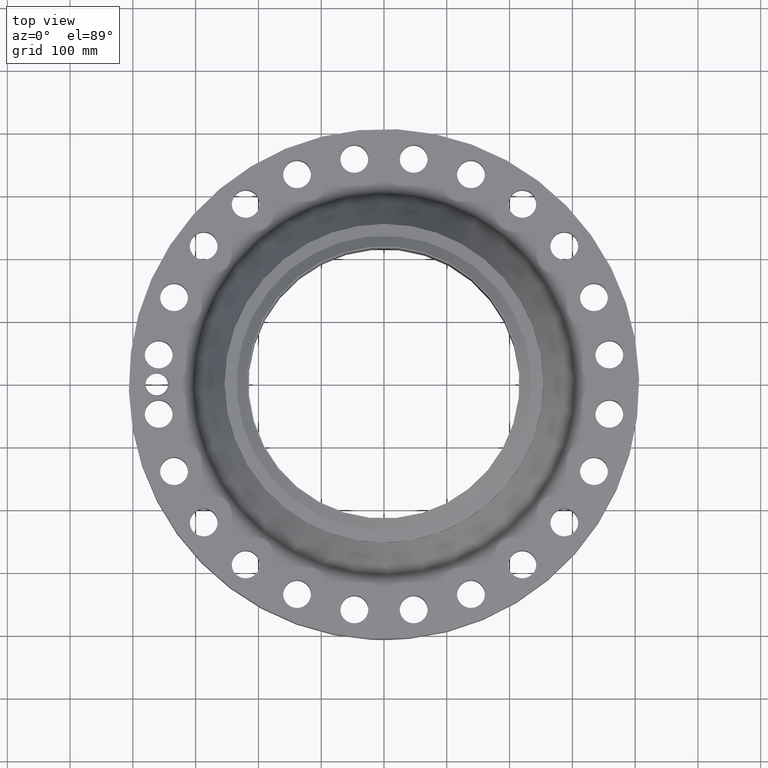
[diagram: clean part render]
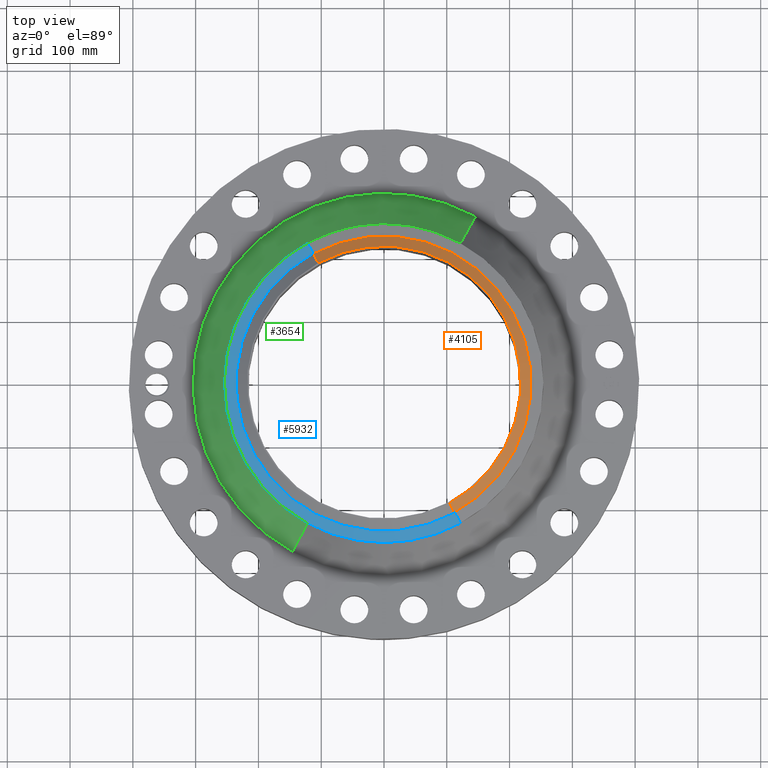
[diagram: same view with three faces highlighted in distinct colors, each labeled with its STEP entity id]
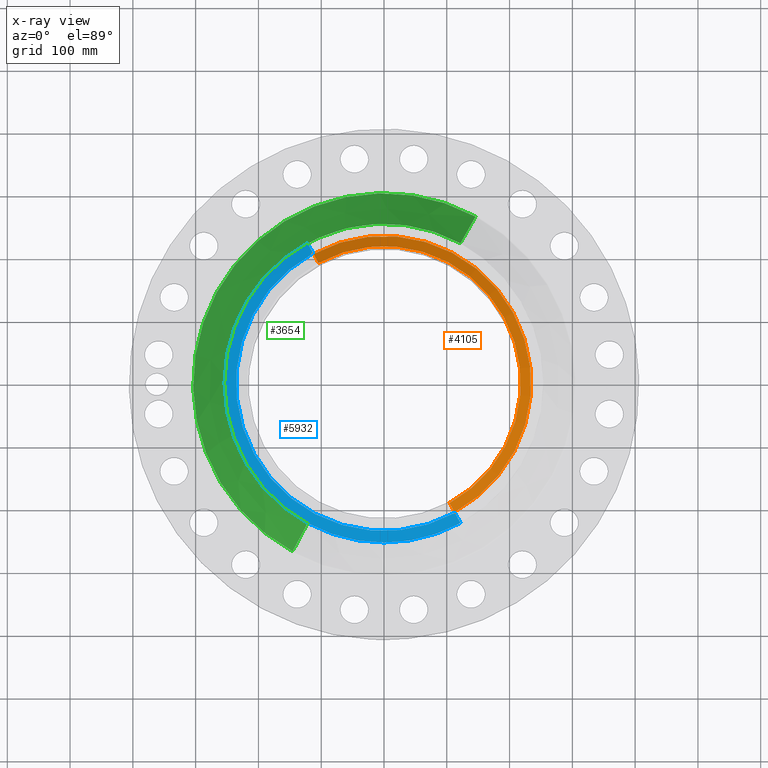
[diagram: x-ray of the same camera — body ghosted, the three highlighted faces saturated]
A machine part, top view with three faces highlighted in distinct colors.
The next image is the same camera in x-ray (body ghosted, the three faces saturated) — at least one of them is partly hidden behind the body in this view.
Their STEP definitions:

[orange] entity #4105 — the highlighted conical surface has half-angle 52.5 deg.
#3246=AXIS2_PLACEMENT_3D('Circle Axis2P3D',#3244,#3245,$) ;
#4066=AXIS2_PLACEMENT_3D('Cone Axis2P3D',#4063,#4064,#4065) ;
#4096=AXIS2_PLACEMENT_3D('Circle Axis2P3D',#4094,#4095,$) ;
#3244=CARTESIAN_POINT('Axis2P3D Location',(0.,0.,7.75000000003)) ;
#3248=CARTESIAN_POINT('Vertex',(4.11286712056,-7.52855276522,7.75000000003)) ;
#3250=CARTESIAN_POINT('Vertex',(-4.11286712056,7.52855276522,7.75000000003)) ;
#4063=CARTESIAN_POINT('Axis2P3D Location',(0.,0.,7.75000000003)) ;
#4068=CARTESIAN_POINT('Line Origine',(-4.26780842311,7.81217091713,7.5020143726)) ;
#4072=CARTESIAN_POINT('Vertex',(-4.42274972566,8.09578906903,7.25402874516)) ;
#4079=CARTESIAN_POINT('Vertex',(4.42274972566,-8.09578906903,7.25402874516)) ;
#4082=CARTESIAN_POINT('Line Origine',(4.26780842311,-7.81217091713,7.5020143726)) ;
#4094=CARTESIAN_POINT('Axis2P3D Location',(0.,0.,7.25402874516)) ;
#3245=DIRECTION('Axis2P3D Direction',(0.,0.,-0.0393700787402)) ;
#4064=DIRECTION('Axis2P3D Direction',(-0.,-0.,-0.0393700787402)) ;
#4065=DIRECTION('Axis2P3D XDirection',(-0.0188750212049,0.0345504945626,0.)) ;
#4069=DIRECTION('Vector Direction',(-0.014974561121,0.02741075027,-0.023966985394)) ;
#4083=DIRECTION('Vector Direction',(0.014974561121,-0.02741075027,-0.023966985394)) ;
#4095=DIRECTION('Axis2P3D Direction',(0.,0.,-0.0393700787402)) ;
#4070=VECTOR('Line Direction',#4069,0.0393700787402) ;
#4084=VECTOR('Line Direction',#4083,0.0393700787402) ;
#4100=ORIENTED_EDGE('',*,*,#3252,.F.) ;
#4101=ORIENTED_EDGE('',*,*,#4086,.T.) ;
#4102=ORIENTED_EDGE('',*,*,#4098,.T.) ;
#4103=ORIENTED_EDGE('',*,*,#4074,.F.) ;
#4105=ADVANCED_FACE('PartBody',(#4104),#4067,.T.) ;
#3247=CIRCLE('generated circle',#3246,8.57874015751) ;
#4097=CIRCLE('generated circle',#4096,9.22510248106) ;
#4067=CONICAL_SURFACE('Cone',#4066,8.57874015751,0.916297857297) ;
#3252=EDGE_CURVE('',#3249,#3251,#3247,.F.) ;
#4074=EDGE_CURVE('',#3251,#4073,#4071,.T.) ;
#4086=EDGE_CURVE('',#3249,#4080,#4085,.T.) ;
#4098=EDGE_CURVE('',#4080,#4073,#4097,.F.) ;
#4099=EDGE_LOOP('',(#4100,#4101,#4102,#4103)) ;
#4104=FACE_OUTER_BOUND('',#4099,.T.) ;
#4071=LINE('Line',#4068,#4070) ;
#4085=LINE('Line',#4082,#4084) ;
#3249=VERTEX_POINT('',#3248) ;
#3251=VERTEX_POINT('',#3250) ;
#4073=VERTEX_POINT('',#4072) ;
#4080=VERTEX_POINT('',#4079) ;

[blue] entity #5932 — the highlighted conical surface has half-angle 80 deg.
#4451=AXIS2_PLACEMENT_3D('Circle Axis2P3D',#4449,#4450,$) ;
#4464=AXIS2_PLACEMENT_3D('Circle Axis2P3D',#4462,#4463,$) ;
#5264=AXIS2_PLACEMENT_3D('Circle Axis2P3D',#5262,#5263,$) ;
#5905=AXIS2_PLACEMENT_3D('Cone Axis2P3D',#5902,#5903,#5904) ;
#4432=CARTESIAN_POINT('Vertex',(-4.79425538606,-8.77582561894,7.10384235723)) ;
#4446=CARTESIAN_POINT('Vertex',(4.79425538606,-8.77582561894,7.10384235723)) ;
#4449=CARTESIAN_POINT('Axis2P3D Location',(0.,0.,7.10384235723)) ;
#4462=CARTESIAN_POINT('Axis2P3D Location',(0.,0.,7.10384235723)) ;
#4466=CARTESIAN_POINT('Vertex',(-4.79425538606,8.77582561894,7.10384235723)) ;
#5259=CARTESIAN_POINT('Vertex',(-4.4473880412,8.14088920311,7.23141601925)) ;
#5262=CARTESIAN_POINT('Axis2P3D Location',(0.,0.,7.23141601925)) ;
#5266=CARTESIAN_POINT('Vertex',(4.4473880412,-8.14088920311,7.23141601925)) ;
#5902=CARTESIAN_POINT('Axis2P3D Location',(0.,0.,7.23141601925)) ;
#5907=CARTESIAN_POINT('Line Origine',(-4.62082171363,8.45835741102,7.16762918824)) ;
#5912=CARTESIAN_POINT('Line Origine',(4.62082171363,-8.45835741102,7.16762918824)) ;
#4450=DIRECTION('Axis2P3D Direction',(0.,0.,-0.0393700787402)) ;
#4463=DIRECTION('Axis2P3D Direction',(0.,0.,-0.0393700787402)) ;
#5263=DIRECTION('Axis2P3D Direction',(0.,0.,0.0393700787402)) ;
#5903=DIRECTION('Axis2P3D Direction',(-0.,-0.,-0.0393700787402)) ;
#5904=DIRECTION('Axis2P3D XDirection',(0.0188750212049,-0.0345504945626,0.)) ;
#5908=DIRECTION('Vector Direction',(-0.0185882672208,0.0340255949157,-0.00683654242783)) ;
#5913=DIRECTION('Vector Direction',(0.0185882672208,-0.0340255949157,-0.00683654242783)) ;
#5909=VECTOR('Line Direction',#5908,0.0393700787402) ;
#5914=VECTOR('Line Direction',#5913,0.0393700787402) ;
#5926=ORIENTED_EDGE('',*,*,#5916,.F.) ;
#5927=ORIENTED_EDGE('',*,*,#5268,.F.) ;
#5928=ORIENTED_EDGE('',*,*,#5911,.T.) ;
#5929=ORIENTED_EDGE('',*,*,#4468,.T.) ;
#5930=ORIENTED_EDGE('',*,*,#4453,.F.) ;
#5932=ADVANCED_FACE('PartBody',(#5931),#5906,.T.) ;
#4452=CIRCLE('generated circle',#4451,10.) ;
#4465=CIRCLE('generated circle',#4464,10.) ;
#5265=CIRCLE('generated circle',#5264,9.27649380996) ;
#5906=CONICAL_SURFACE('Cone',#5905,9.27649380996,1.3962634016) ;
#4453=EDGE_CURVE('',#4447,#4433,#4452,.T.) ;
#4468=EDGE_CURVE('',#4467,#4433,#4465,.F.) ;
#5268=EDGE_CURVE('',#5260,#5267,#5265,.T.) ;
#5911=EDGE_CURVE('',#5260,#4467,#5910,.T.) ;
#5916=EDGE_CURVE('',#5267,#4447,#5915,.T.) ;
#5925=EDGE_LOOP('',(#5926,#5927,#5928,#5929,#5930)) ;
#5931=FACE_OUTER_BOUND('',#5925,.T.) ;
#5910=LINE('Line',#5907,#5909) ;
#5915=LINE('Line',#5912,#5914) ;
#4433=VERTEX_POINT('',#4432) ;
#4447=VERTEX_POINT('',#4446) ;
#4467=VERTEX_POINT('',#4466) ;
#5260=VERTEX_POINT('',#5259) ;
#5267=VERTEX_POINT('',#5266) ;

[green] entity #3654 — the highlighted conical surface has half-angle 32.681 deg.
#2936=AXIS2_PLACEMENT_3D('Circle Axis2P3D',#2934,#2935,$) ;
#3615=AXIS2_PLACEMENT_3D('Cone Axis2P3D',#3612,#3613,#3614) ;
#3645=AXIS2_PLACEMENT_3D('Circle Axis2P3D',#3643,#3644,$) ;
#2912=CARTESIAN_POINT('Vertex',(5.73612767656,10.4999112821,3.80520506604)) ;
#2919=CARTESIAN_POINT('Vertex',(-5.73612767656,-10.4999112821,3.80520506604)) ;
#2934=CARTESIAN_POINT('Axis2P3D Location',(0.,0.,3.80520506604)) ;
#3612=CARTESIAN_POINT('Axis2P3D Location',(0.,0.,6.86762188479)) ;
#3617=CARTESIAN_POINT('Line Origine',(5.26519153131,9.63786845053,5.33641347541)) ;
#3621=CARTESIAN_POINT('Vertex',(4.79425538606,8.77582561894,6.86762188479)) ;
#3628=CARTESIAN_POINT('Vertex',(-4.79425538606,-8.77582561894,6.86762188479)) ;
#3631=CARTESIAN_POINT('Line Origine',(-5.26519153131,-9.63786845053,5.33641347541)) ;
#3643=CARTESIAN_POINT('Axis2P3D Location',(0.,0.,6.86762188479)) ;
#2935=DIRECTION('Axis2P3D Direction',(0.,0.,-0.0393700787402)) ;
#3613=DIRECTION('Axis2P3D Direction',(0.,0.,-0.0393700787402)) ;
#3614=DIRECTION('Axis2P3D XDirection',(-0.0188750212049,-0.0345504945626,0.)) ;
#3618=DIRECTION('Vector Direction',(0.010191714606,0.0186558084496,-0.0331374842812)) ;
#3632=DIRECTION('Vector Direction',(-0.010191714606,-0.0186558084496,-0.0331374842812)) ;
#3644=DIRECTION('Axis2P3D Direction',(0.,0.,-0.0393700787402)) ;
#3619=VECTOR('Line Direction',#3618,0.0393700787402) ;
#3633=VECTOR('Line Direction',#3632,0.0393700787402) ;
#3649=ORIENTED_EDGE('',*,*,#2938,.F.) ;
#3650=ORIENTED_EDGE('',*,*,#3635,.T.) ;
#3651=ORIENTED_EDGE('',*,*,#3647,.T.) ;
#3652=ORIENTED_EDGE('',*,*,#3623,.F.) ;
#3654=ADVANCED_FACE('PartBody',(#3653),#3616,.T.) ;
#2937=CIRCLE('generated circle',#2936,11.9645851434) ;
#3646=CIRCLE('generated circle',#3645,10.) ;
#3616=CONICAL_SURFACE('Cone',#3615,10.,0.570386951434) ;
#2938=EDGE_CURVE('',#2920,#2913,#2937,.T.) ;
#3623=EDGE_CURVE('',#2913,#3622,#3620,.F.) ;
#3635=EDGE_CURVE('',#2920,#3629,#3634,.F.) ;
#3647=EDGE_CURVE('',#3629,#3622,#3646,.T.) ;
#3648=EDGE_LOOP('',(#3649,#3650,#3651,#3652)) ;
#3653=FACE_OUTER_BOUND('',#3648,.T.) ;
#3620=LINE('Line',#3617,#3619) ;
#3634=LINE('Line',#3631,#3633) ;
#2913=VERTEX_POINT('',#2912) ;
#2920=VERTEX_POINT('',#2919) ;
#3622=VERTEX_POINT('',#3621) ;
#3629=VERTEX_POINT('',#3628) ;